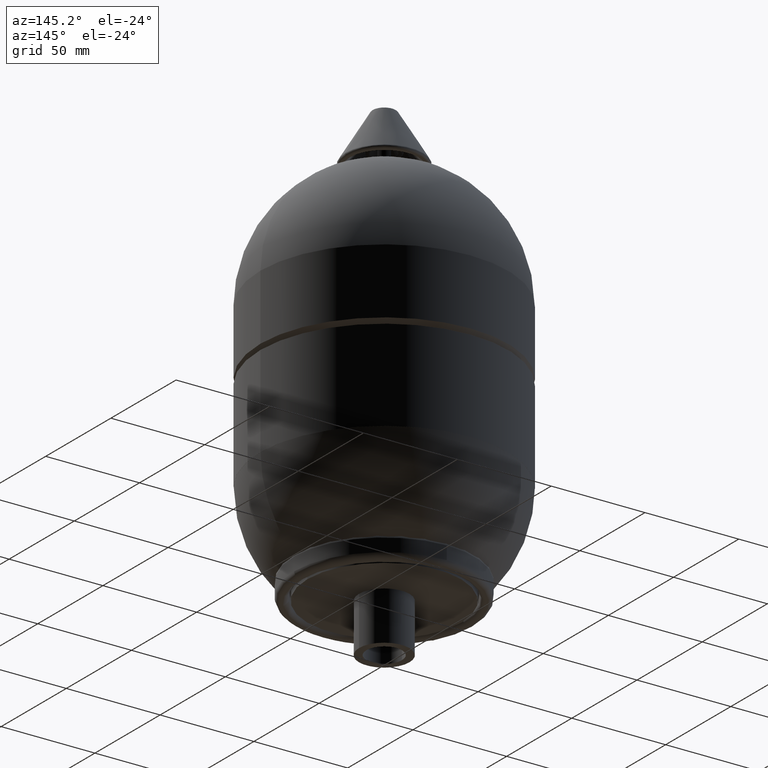
[diagram: clean part render]
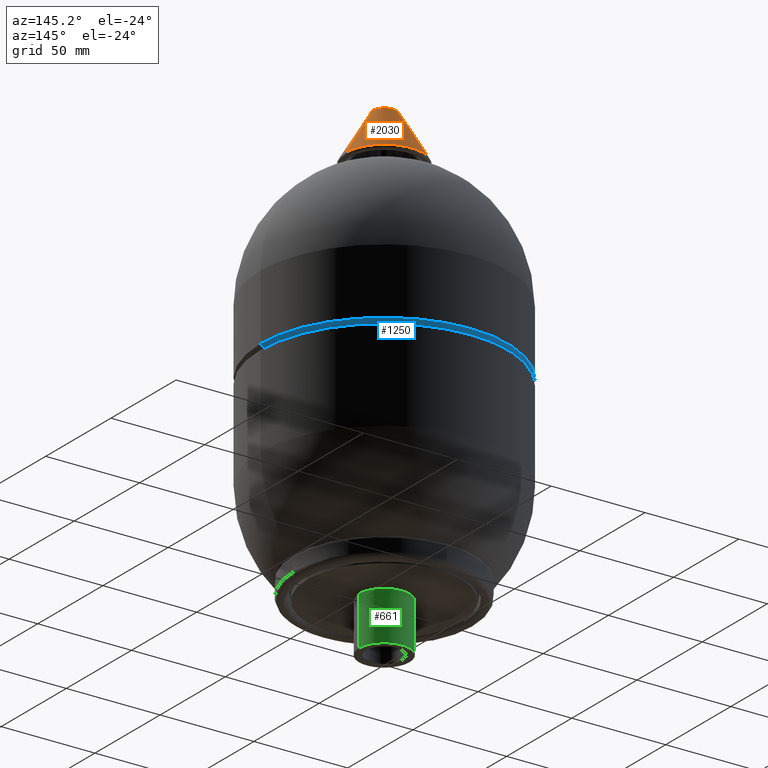
[diagram: same view with three faces highlighted in distinct colors, each labeled with its STEP entity id]
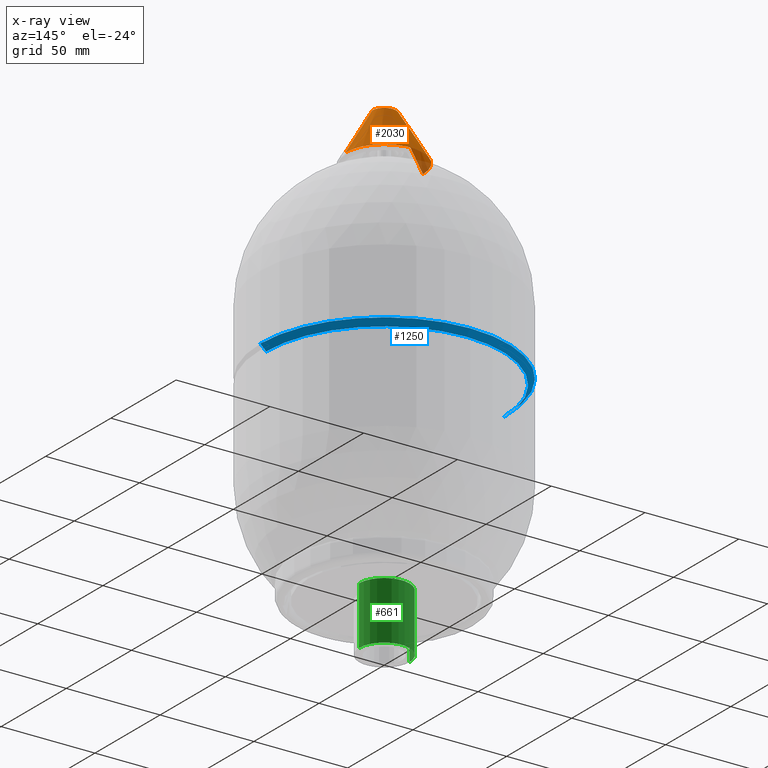
[diagram: x-ray of the same camera — body ghosted, the three highlighted faces saturated]
A machine part, auxiliary view with three faces highlighted in distinct colors.
The next image is the same camera in x-ray (body ghosted, the three faces saturated) — at least one of them is partly hidden behind the body in this view.
Their STEP definitions:

[orange] entity #2030 — the highlighted conical surface has half-angle 30.964 deg.
#1886=CARTESIAN_POINT('',(-20.614128183429354,0.0,235.643119694284420));
#1887=VERTEX_POINT('',#1886);
#1904=CARTESIAN_POINT('',(20.614128183429351,-2.524419E-015,235.643119694284420));
#1905=VERTEX_POINT('',#1904);
#1928=CARTESIAN_POINT('',(-6.364128183429356,0.0,259.393119694284390));
#1929=VERTEX_POINT('',#1928);
#1930=CARTESIAN_POINT('',(-20.614128183429354,0.0,235.643119694284420));
#1931=DIRECTION('',(0.514495755427527,0.0,0.857492925712544));
#1932=VECTOR('',#1931,27.697021500515152);
#1933=LINE('',#1930,#1932);
#1934=EDGE_CURVE('',#1887,#1929,#1933,.T.);
#1937=CARTESIAN_POINT('',(6.364128183429356,-7.793552E-016,259.393119694284390));
#1938=VERTEX_POINT('',#1937);
#1939=CARTESIAN_POINT('',(20.614128183429351,-2.524419E-015,235.643119694284420));
#1940=DIRECTION('',(-0.514495755427527,6.300548E-017,0.857492925712544));
#1941=VECTOR('',#1940,27.697021500515152);
#1942=LINE('',#1939,#1941);
#1943=EDGE_CURVE('',#1905,#1938,#1942,.T.);
#2003=CARTESIAN_POINT('',(-1.773085E-016,0.0,259.393119694284390));
#2004=DIRECTION('',(0.0,0.0,-1.0));
#2005=DIRECTION('',(-1.0,0.0,0.0));
#2006=AXIS2_PLACEMENT_3D('',#2003,#2004,#2005);
#2007=CIRCLE('',#2006,6.364128183429356);
#2008=EDGE_CURVE('',#1929,#1938,#2007,.T.);
#2013=CARTESIAN_POINT('',(-3.646756E-015,0.0,247.518119694284420));
#2014=DIRECTION('',(-2.921640E-016,0.0,-1.0));
#2015=DIRECTION('',(-1.0,0.0,0.0));
#2016=AXIS2_PLACEMENT_3D('',#2013,#2014,#2015);
#2017=CONICAL_SURFACE('',#2016,13.489128183429353,30.963756532073528);
#2018=ORIENTED_EDGE('',*,*,#1934,.T.);
#2019=ORIENTED_EDGE('',*,*,#2008,.T.);
#2020=ORIENTED_EDGE('',*,*,#1943,.F.);
#2021=CARTESIAN_POINT('',(-7.116202E-015,0.0,235.643119694284420));
#2022=DIRECTION('',(0.0,0.0,-1.0));
#2023=DIRECTION('',(-1.0,0.0,0.0));
#2024=AXIS2_PLACEMENT_3D('',#2021,#2022,#2023);
#2025=CIRCLE('',#2024,20.614128183429351);
#2026=EDGE_CURVE('',#1887,#1905,#2025,.T.);
#2027=ORIENTED_EDGE('',*,*,#2026,.F.);
#2028=EDGE_LOOP('',(#2018,#2019,#2020,#2027));
#2029=FACE_OUTER_BOUND('',#2028,.T.);
#2030=ADVANCED_FACE('',(#2029),#2017,.T.);

[blue] entity #1250 — the highlighted conical surface has half-angle 45 deg.
#1070=CARTESIAN_POINT('',(65.999999999999972,0.0,132.500000000000000));
#1071=VERTEX_POINT('',#1070);
#1087=CARTESIAN_POINT('',(-65.999999999999957,-8.082402E-015,132.500000000000000));
#1088=VERTEX_POINT('',#1087);
#1110=CARTESIAN_POINT('',(62.999999999999986,0.0,129.499999999999970));
#1111=VERTEX_POINT('',#1110);
#1112=CARTESIAN_POINT('',(65.999999999999972,0.0,132.500000000000000));
#1113=DIRECTION('',(-0.707106781186542,0.0,-0.707106781186552));
#1114=VECTOR('',#1113,4.242640687119295);
#1115=LINE('',#1112,#1114);
#1116=EDGE_CURVE('',#1071,#1111,#1115,.T.);
#1119=CARTESIAN_POINT('',(-62.999999999999972,-7.715020E-015,129.499999999999970));
#1120=VERTEX_POINT('',#1119);
#1121=CARTESIAN_POINT('',(-65.999999999999957,-8.082402E-015,132.500000000000000));
#1122=DIRECTION('',(0.707106781186542,8.659275E-017,-0.707106781186552));
#1123=VECTOR('',#1122,4.242640687119295);
#1124=LINE('',#1121,#1123);
#1125=EDGE_CURVE('',#1088,#1120,#1124,.T.);
#1194=CARTESIAN_POINT('',(0.0,0.0,129.499999999999970));
#1195=DIRECTION('',(0.0,0.0,1.0));
#1196=DIRECTION('',(1.0,0.0,0.0));
#1197=AXIS2_PLACEMENT_3D('',#1194,#1195,#1196);
#1198=CIRCLE('',#1197,62.999999999999986);
#1199=EDGE_CURVE('',#1111,#1120,#1198,.T.);
#1233=CARTESIAN_POINT('',(0.0,0.0,131.0));
#1234=DIRECTION('',(0.0,0.0,1.0));
#1235=DIRECTION('',(1.0,0.0,0.0));
#1236=AXIS2_PLACEMENT_3D('',#1233,#1234,#1235);
#1237=CONICAL_SURFACE('',#1236,64.499999999999972,44.999999999999659);
#1238=ORIENTED_EDGE('',*,*,#1116,.T.);
#1239=ORIENTED_EDGE('',*,*,#1199,.T.);
#1240=ORIENTED_EDGE('',*,*,#1125,.F.);
#1241=CARTESIAN_POINT('',(0.0,0.0,132.500000000000000));
#1242=DIRECTION('',(0.0,0.0,1.0));
#1243=DIRECTION('',(1.0,0.0,0.0));
#1244=AXIS2_PLACEMENT_3D('',#1241,#1242,#1243);
#1245=CIRCLE('',#1244,65.999999999999972);
#1246=EDGE_CURVE('',#1071,#1088,#1245,.T.);
#1247=ORIENTED_EDGE('',*,*,#1246,.F.);
#1248=EDGE_LOOP('',(#1238,#1239,#1240,#1247));
#1249=FACE_OUTER_BOUND('',#1248,.T.);
#1250=ADVANCED_FACE('',(#1249),#1237,.T.);

[green] entity #661 — the highlighted cylindrical surface (edge-blend (fillet) strip) has radius 13.45 mm, axis along (0, 0, 1).
#275=CARTESIAN_POINT('',(13.449999999999999,0.0,30.999999999999989));
#276=VERTEX_POINT('',#275);
#277=CARTESIAN_POINT('',(13.449999999999999,0.0,0.0));
#278=VERTEX_POINT('',#277);
#279=CARTESIAN_POINT('',(13.449999999999999,0.0,30.999999999999989));
#280=DIRECTION('',(0.0,0.0,-1.0));
#281=VECTOR('',#280,30.999999999999989);
#282=LINE('',#279,#281);
#283=EDGE_CURVE('',#276,#278,#282,.T.);
#285=CARTESIAN_POINT('',(-13.449999999999999,1.647096E-015,30.999999999999993));
#286=VERTEX_POINT('',#285);
#294=CARTESIAN_POINT('',(-13.449999999999999,-1.647096E-015,0.0));
#295=VERTEX_POINT('',#294);
#296=CARTESIAN_POINT('',(-13.449999999999999,1.647096E-015,30.999999999999993));
#297=DIRECTION('',(0.0,0.0,-1.0));
#298=VECTOR('',#297,30.999999999999993);
#299=LINE('',#296,#298);
#300=EDGE_CURVE('',#286,#295,#299,.T.);
#519=CARTESIAN_POINT('',(0.0,0.0,30.999999999999993));
#520=DIRECTION('',(0.0,0.0,-1.0));
#521=DIRECTION('',(1.0,0.0,0.0));
#522=AXIS2_PLACEMENT_3D('',#519,#520,#521);
#523=CIRCLE('',#522,13.449999999999999);
#524=EDGE_CURVE('',#286,#276,#523,.T.);
#644=CARTESIAN_POINT('',(0.0,0.0,0.0));
#645=DIRECTION('',(0.0,0.0,1.0));
#646=DIRECTION('',(1.0,0.0,0.0));
#647=AXIS2_PLACEMENT_3D('',#644,#645,#646);
#648=CYLINDRICAL_SURFACE('',#647,13.449999999999999);
#649=ORIENTED_EDGE('',*,*,#283,.T.);
#650=CARTESIAN_POINT('',(0.0,0.0,0.0));
#651=DIRECTION('',(0.0,0.0,1.0));
#652=DIRECTION('',(1.0,0.0,0.0));
#653=AXIS2_PLACEMENT_3D('',#650,#651,#652);
#654=CIRCLE('',#653,13.449999999999999);
#655=EDGE_CURVE('',#278,#295,#654,.T.);
#656=ORIENTED_EDGE('',*,*,#655,.T.);
#657=ORIENTED_EDGE('',*,*,#300,.F.);
#658=ORIENTED_EDGE('',*,*,#524,.T.);
#659=EDGE_LOOP('',(#649,#656,#657,#658));
#660=FACE_OUTER_BOUND('',#659,.T.);
#661=ADVANCED_FACE('',(#660),#648,.T.);